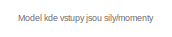
[diagram: root canvas - part 1/2, top left region]
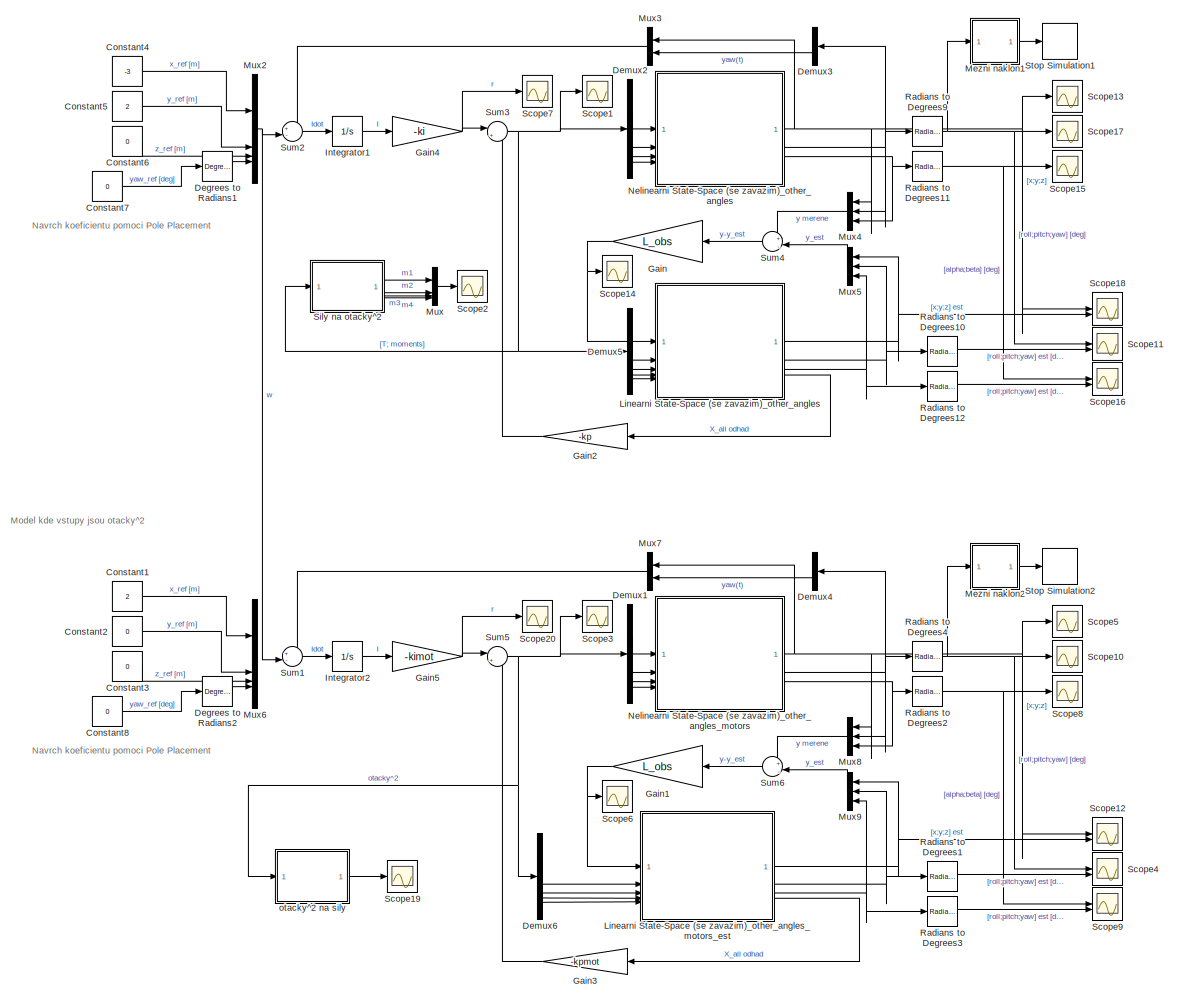
[diagram: root canvas - part 2/2, most of the canvas]
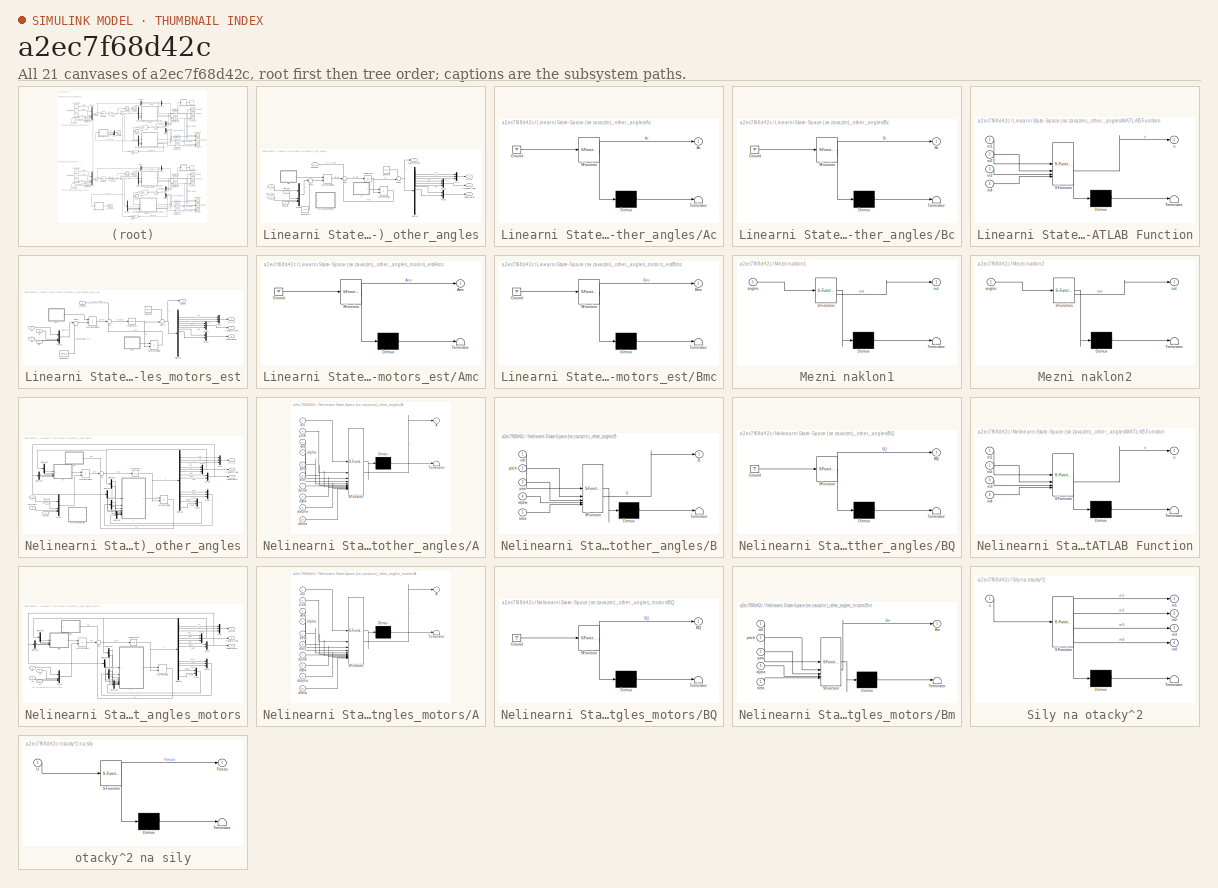
[diagram: thumbnail index - all 21 canvases of the model, root first then tree order]
MODEL slx_a2ec7f68d42c
KIND model
CONFIG AbsTol = auto
CONFIG EnableMultiTasking = off
CONFIG FixedStep = 0.01
CONFIG MaxStep = auto
CONFIG MinStep = auto
CONFIG RelTol = 1e-3
CONFIG SampleTimeConstraint = Unconstrained
CONFIG SolverName = FixedStepAuto
CONFIG StartTime = 0.0
CONFIG StopTime = 20
BLOCK [Constant] Constant1
  Commented = on
  Value = 2
BLOCK [Constant] Constant2
  Commented = on
  Value = 0
BLOCK [Constant] Constant3
  Commented = on
  Value = 0
BLOCK [Constant] Constant4
  Value = -3
BLOCK [Constant] Constant5
  Value = 2
BLOCK [Constant] Constant6
  Value = 0
BLOCK [Constant] Constant7
  Value = 0
BLOCK [Constant] Constant8
  Commented = on
  Value = 0
BLOCK [Reference] Degrees to Radians1  REF=simulink_extras/Transformations/Degrees to
Radians
  SourceBlock = simulink_extras/Transformations/Degrees to\nRadians
  SourceType = DegreesToRadians
BLOCK [Reference] Degrees to Radians2  REF=simulink_extras/Transformations/Degrees to
Radians
  Commented = on
  SourceBlock = simulink_extras/Transformations/Degrees to\nRadians
  SourceType = DegreesToRadians
BLOCK [Demux] Demux1
BLOCK [Demux] Demux2
BLOCK [Demux] Demux3
  Outputs = 3
BLOCK [Demux] Demux4
  Outputs = 3
BLOCK [Demux] Demux5
BLOCK [Demux] Demux6
BLOCK [Gain] Gain
  Gain = L_obs
  Multiplication = Matrix(K*u)
BLOCK [Gain] Gain1
  Gain = L_obs
  Multiplication = Matrix(K*u)
BLOCK [Gain] Gain2
  Gain = -kp
  Multiplication = Matrix(K*u)
BLOCK [Gain] Gain3
  Gain = -kpmot
  Multiplication = Matrix(K*u)
BLOCK [Gain] Gain4
  Gain = -ki
  Multiplication = Matrix(K*u)
BLOCK [Gain] Gain5
  Gain = -kimot
  Multiplication = Matrix(K*u)
BLOCK [Integrator] Integrator1
BLOCK [Integrator] Integrator2
BLOCK [SubSystem] Linearni State-Space (se zavazim)_other_angles
BLOCK [SubSystem] Linearni State-Space (se zavazim)_other_angles/Ac
  ErrorFcn = Stateflow.Translate.translate
  PermitHierarchicalResolution = ExplicitOnly
  SFBlockType = MATLAB Function
  TreatAsAtomicUnit = on
BLOCK [Demux] Linearni State-Space (se zavazim)_other_angles/Ac/ Demux 
  Outputs = 1
BLOCK [Ground] Linearni State-Space (se zavazim)_other_angles/Ac/ Ground 
BLOCK [S-Function] Linearni State-Space (se zavazim)_other_angles/Ac/ SFunction 
  EnableBusSupport = on
  FunctionName = sf_sfun
  Parameters = Ip,M,d,g,m
  PortCounts = [1 2]
  SFcnIsStateOwnerBlock = off
  SFunctionDeploymentMode = off
  Tag = Stateflow S-Function 4
BLOCK [Terminator] Linearni State-Space (se zavazim)_other_angles/Ac/ Terminator 
BLOCK [Outport] Linearni State-Space (se zavazim)_other_angles/Ac/Ac
BLOCK [SubSystem] Linearni State-Space (se zavazim)_other_angles/Bc
  ErrorFcn = Stateflow.Translate.translate
  PermitHierarchicalResolution = ExplicitOnly
  SFBlockType = MATLAB Function
  TreatAsAtomicUnit = on
BLOCK [Demux] Linearni State-Space (se zavazim)_other_angles/Bc/ Demux 
  Outputs = 1
BLOCK [Ground] Linearni State-Space (se zavazim)_other_angles/Bc/ Ground 
BLOCK [S-Function] Linearni State-Space (se zavazim)_other_angles/Bc/ SFunction 
  EnableBusSupport = on
  FunctionName = sf_sfun
  Parameters = Ixx,Iyy,Izz,M,m
  PortCounts = [1 2]
  SFcnIsStateOwnerBlock = off
  SFunctionDeploymentMode = off
  Tag = Stateflow S-Function 5
BLOCK [Terminator] Linearni State-Space (se zavazim)_other_angles/Bc/ Terminator 
BLOCK [Outport] Linearni State-Space (se zavazim)_other_angles/Bc/Bc
BLOCK [Constant] Linearni State-Space (se zavazim)_other_angles/Constant
  Value = Xs_p
BLOCK [Constant] Linearni State-Space (se zavazim)_other_angles/Constant1
  Value = Us_p
BLOCK [Demux] Linearni State-Space (se zavazim)_other_angles/Demux
  Outputs = 16
BLOCK [Integrator] Linearni State-Space (se zavazim)_other_angles/Integrator1
  InitialCondition = Xinit_ss
BLOCK [Inport] Linearni State-Space (se zavazim)_other_angles/Korekce
BLOCK [SubSystem] Linearni State-Space (se zavazim)_other_angles/MATLAB Function
  Commented = on
  ErrorFcn = Stateflow.Translate.translate
  PermitHierarchicalResolution = ExplicitOnly
  SFBlockType = MATLAB Function
  TreatAsAtomicUnit = on
BLOCK [Demux] Linearni State-Space (se zavazim)_other_angles/MATLAB Function/ Demux 
  Outputs = 1
BLOCK [S-Function] Linearni State-Space (se zavazim)_other_angles/MATLAB Function/ SFunction 
  EnableBusSupport = on
  FunctionName = sf_sfun
  Parameters = L,b_moment,k_thrust
  PortCounts = [4 2]
  SFcnIsStateOwnerBlock = off
  SFunctionDeploymentMode = off
  Tag = Stateflow S-Function 6
BLOCK [Terminator] Linearni State-Space (se zavazim)_other_angles/MATLAB Function/ Terminator 
BLOCK [Inport] Linearni State-Space (se zavazim)_other_angles/MATLAB Function/m1
BLOCK [Inport] Linearni State-Space (se zavazim)_other_angles/MATLAB Function/m2
  Port = 2
BLOCK [Inport] Linearni State-Space (se zavazim)_other_angles/MATLAB Function/m3
  Port = 3
BLOCK [Inport] Linearni State-Space (se zavazim)_other_angles/MATLAB Function/m4
  Port = 4
BLOCK [Outport] Linearni State-Space (se zavazim)_other_angles/MATLAB Function/u
BLOCK [Product] Linearni State-Space (se zavazim)_other_angles/MatrixMultiply
  Multiplication = Matrix(*)
BLOCK [Product] Linearni State-Space (se zavazim)_other_angles/MatrixMultiply1
  Multiplication = Matrix(*)
BLOCK [Mux] Linearni State-Space (se zavazim)_other_angles/Mux
  DisplayOption = bar
  Inputs = 3
BLOCK [Mux] Linearni State-Space (se zavazim)_other_angles/Mux1
  DisplayOption = bar
  Inputs = 3
BLOCK [Mux] Linearni State-Space (se zavazim)_other_angles/Mux2
  DisplayOption = bar
  Inputs = 2
BLOCK [Mux] Linearni State-Space (se zavazim)_other_angles/Mux5
  DisplayOption = bar
BLOCK [Sum] Linearni State-Space (se zavazim)_other_angles/Sum
  Inputs = +++
BLOCK [Sum] Linearni State-Space (se zavazim)_other_angles/Sum1
  Inputs = ++|
BLOCK [Sum] Linearni State-Space (se zavazim)_other_angles/Sum2
  Inputs = |+-
BLOCK [Inport] Linearni State-Space (se zavazim)_other_angles/T
  Port = 2
BLOCK [Inport] Linearni State-Space (se zavazim)_other_angles/Tau_phi
  Port = 3
BLOCK [Inport] Linearni State-Space (se zavazim)_other_angles/Tau_psi
  Port = 5
BLOCK [Inport] Linearni State-Space (se zavazim)_other_angles/Tau_theta
  Port = 4
BLOCK [Outport] Linearni State-Space (se zavazim)_other_angles/X_all_estimate
  Port = 4
BLOCK [Outport] Linearni State-Space (se zavazim)_other_angles/[alpha;beta]
  Port = 3
BLOCK [Outport] Linearni State-Space (se zavazim)_other_angles/[roll;pitch;yaw]
  Port = 2
BLOCK [Outport] Linearni State-Space (se zavazim)_other_angles/[x;y;z]
BLOCK [SubSystem] Linearni State-Space (se zavazim)_other_angles_motors_est
BLOCK [SubSystem] Linearni State-Space (se zavazim)_other_angles_motors_est/Amc
  ErrorFcn = Stateflow.Translate.translate
  PermitHierarchicalResolution = ExplicitOnly
  SFBlockType = MATLAB Function
  TreatAsAtomicUnit = on
BLOCK [Demux] Linearni State-Space (se zavazim)_other_angles_motors_est/Amc/ Demux 
  Outputs = 1
BLOCK [Ground] Linearni State-Space (se zavazim)_other_angles_motors_est/Amc/ Ground 
BLOCK [S-Function] Linearni State-Space (se zavazim)_other_angles_motors_est/Amc/ SFunction 
  EnableBusSupport = on
  FunctionName = sf_sfun
  Parameters = M,d,g,m
  PortCounts = [1 2]
  SFcnIsStateOwnerBlock = off
  SFunctionDeploymentMode = off
  Tag = Stateflow S-Function 32
BLOCK [Terminator] Linearni State-Space (se zavazim)_other_angles_motors_est/Amc/ Terminator 
BLOCK [Outport] Linearni State-Space (se zavazim)_other_angles_motors_est/Amc/Amc
BLOCK [SubSystem] Linearni State-Space (se zavazim)_other_angles_motors_est/Bmc
  ErrorFcn = Stateflow.Translate.translate
  PermitHierarchicalResolution = ExplicitOnly
  SFBlockType = MATLAB Function
  TreatAsAtomicUnit = on
BLOCK [Demux] Linearni State-Space (se zavazim)_other_angles_motors_est/Bmc/ Demux 
  Outputs = 1
BLOCK [Ground] Linearni State-Space (se zavazim)_other_angles_motors_est/Bmc/ Ground 
BLOCK [S-Function] Linearni State-Space (se zavazim)_other_angles_motors_est/Bmc/ SFunction 
  EnableBusSupport = on
  FunctionName = sf_sfun
  Parameters = Ixx,Iyy,Izz,M,b_moment,k_thrust,l,m
  PortCounts = [1 2]
  SFcnIsStateOwnerBlock = off
  SFunctionDeploymentMode = off
  Tag = Stateflow S-Function 33
BLOCK [Terminator] Linearni State-Space (se zavazim)_other_angles_motors_est/Bmc/ Terminator 
BLOCK [Outport] Linearni State-Space (se zavazim)_other_angles_motors_est/Bmc/Bmc
BLOCK [Constant] Linearni State-Space (se zavazim)_other_angles_motors_est/Constant
  Value = Xs_p
BLOCK [Constant] Linearni State-Space (se zavazim)_other_angles_motors_est/Constant1
  Value = Ums_p
BLOCK [Demux] Linearni State-Space (se zavazim)_other_angles_motors_est/Demux
  Outputs = 16
BLOCK [Integrator] Linearni State-Space (se zavazim)_other_angles_motors_est/Integrator1
  InitialCondition = Xinit_ss
BLOCK [Inport] Linearni State-Space (se zavazim)_other_angles_motors_est/Korekce
BLOCK [Product] Linearni State-Space (se zavazim)_other_angles_motors_est/MatrixMultiply
  Multiplication = Matrix(*)
BLOCK [Product] Linearni State-Space (se zavazim)_other_angles_motors_est/MatrixMultiply1
  Multiplication = Matrix(*)
BLOCK [Mux] Linearni State-Space (se zavazim)_other_angles_motors_est/Mux
  DisplayOption = bar
  Inputs = 3
BLOCK [Mux] Linearni State-Space (se zavazim)_other_angles_motors_est/Mux1
  DisplayOption = bar
  Inputs = 3
BLOCK [Mux] Linearni State-Space (se zavazim)_other_angles_motors_est/Mux2
  DisplayOption = bar
  Inputs = 2
BLOCK [Mux] Linearni State-Space (se zavazim)_other_angles_motors_est/Mux5
  DisplayOption = bar
BLOCK [Sum] Linearni State-Space (se zavazim)_other_angles_motors_est/Sum
  Inputs = +++
BLOCK [Sum] Linearni State-Space (se zavazim)_other_angles_motors_est/Sum1
  Inputs = ++|
BLOCK [Sum] Linearni State-Space (se zavazim)_other_angles_motors_est/Sum2
  Inputs = |+-
BLOCK [Inport] Linearni State-Space (se zavazim)_other_angles_motors_est/U1
  Port = 2
BLOCK [Inport] Linearni State-Space (se zavazim)_other_angles_motors_est/U2
  Port = 3
BLOCK [Inport] Linearni State-Space (se zavazim)_other_angles_motors_est/U3
  Port = 4
BLOCK [Inport] Linearni State-Space (se zavazim)_other_angles_motors_est/U4
  Port = 5
BLOCK [Outport] Linearni State-Space (se zavazim)_other_angles_motors_est/X_all_est
  Port = 4
BLOCK [Outport] Linearni State-Space (se zavazim)_other_angles_motors_est/[alpha;beta]
  Port = 3
BLOCK [Outport] Linearni State-Space (se zavazim)_other_angles_motors_est/[roll;pitch;yaw]
  Port = 2
BLOCK [Outport] Linearni State-Space (se zavazim)_other_angles_motors_est/[x;y;z]
BLOCK [SubSystem] Mezni naklon1
  ErrorFcn = Stateflow.Translate.translate
  PermitHierarchicalResolution = ExplicitOnly
  SFBlockType = MATLAB Function
  TreatAsAtomicUnit = on
BLOCK [Demux] Mezni naklon1/ Demux 
  Outputs = 1
BLOCK [S-Function] Mezni naklon1/ SFunction 
  EnableBusSupport = on
  FunctionName = sf_sfun
  PortCounts = [1 2]
  SFcnIsStateOwnerBlock = off
  SFunctionDeploymentMode = off
  Tag = Stateflow S-Function 2
BLOCK [Terminator] Mezni naklon1/ Terminator 
BLOCK [Inport] Mezni naklon1/angles
BLOCK [Outport] Mezni naklon1/out
BLOCK [SubSystem] Mezni naklon2
  ErrorFcn = Stateflow.Translate.translate
  PermitHierarchicalResolution = ExplicitOnly
  SFBlockType = MATLAB Function
  TreatAsAtomicUnit = on
BLOCK [Demux] Mezni naklon2/ Demux 
  Outputs = 1
BLOCK [S-Function] Mezni naklon2/ SFunction 
  EnableBusSupport = on
  FunctionName = sf_sfun
  PortCounts = [1 2]
  SFcnIsStateOwnerBlock = off
  SFunctionDeploymentMode = off
  Tag = Stateflow S-Function 9
BLOCK [Terminator] Mezni naklon2/ Terminator 
BLOCK [Inport] Mezni naklon2/angles
BLOCK [Outport] Mezni naklon2/out
BLOCK [Mux] Mux
  DisplayOption = bar
BLOCK [Mux] Mux2
  DisplayOption = bar
BLOCK [Mux] Mux3
  DisplayOption = bar
  Inputs = 2
BLOCK [Mux] Mux4
  DisplayOption = bar
  Inputs = 3
BLOCK [Mux] Mux5
  DisplayOption = bar
  Inputs = 3
BLOCK [Mux] Mux6
  Commented = on
  DisplayOption = bar
BLOCK [Mux] Mux7
  DisplayOption = bar
  Inputs = 2
BLOCK [Mux] Mux8
  DisplayOption = bar
  Inputs = 3
BLOCK [Mux] Mux9
  DisplayOption = bar
  Inputs = 3
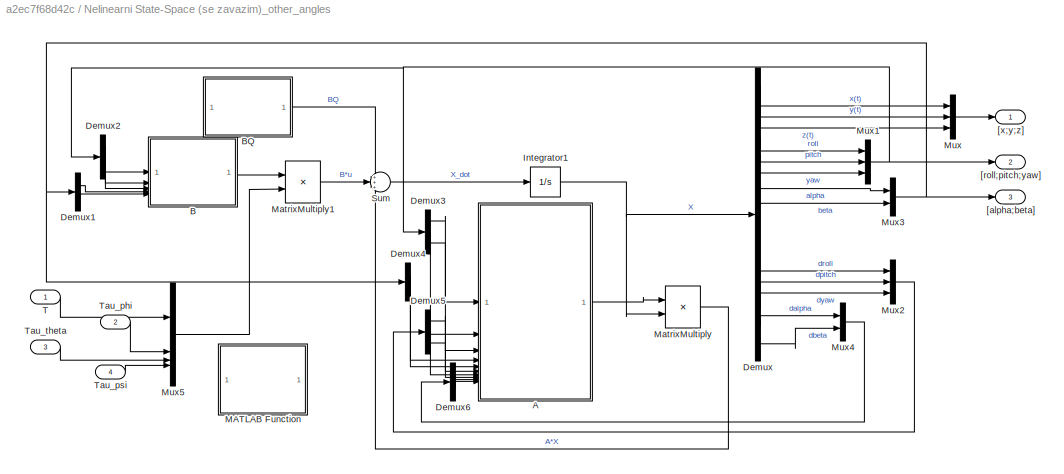
BLOCK [SubSystem] Nelinearni State-Space (se zavazim)_other_angles
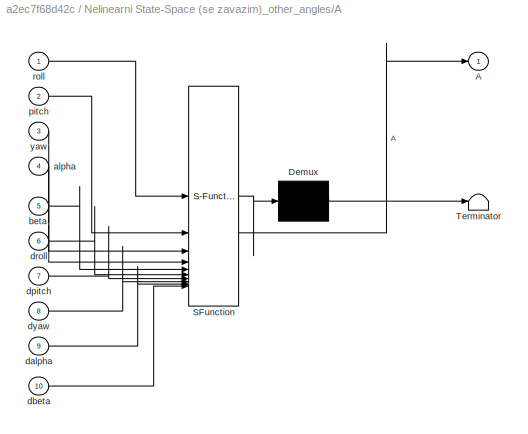
BLOCK [SubSystem] Nelinearni State-Space (se zavazim)_other_angles/A
  ErrorFcn = Stateflow.Translate.translate
  PermitHierarchicalResolution = ExplicitOnly
  SFBlockType = MATLAB Function
  TreatAsAtomicUnit = on
BLOCK [Demux] Nelinearni State-Space (se zavazim)_other_angles/A/ Demux 
  Outputs = 1
BLOCK [S-Function] Nelinearni State-Space (se zavazim)_other_angles/A/ SFunction 
  EnableBusSupport = on
  FunctionName = sf_sfun
  Parameters = Ip,Ixx,Iyy,Izz,M,d,m
  PortCounts = [10 2]
  SFcnIsStateOwnerBlock = off
  SFunctionDeploymentMode = off
  Tag = Stateflow S-Function 21
BLOCK [Terminator] Nelinearni State-Space (se zavazim)_other_angles/A/ Terminator 
BLOCK [Outport] Nelinearni State-Space (se zavazim)_other_angles/A/A
BLOCK [Inport] Nelinearni State-Space (se zavazim)_other_angles/A/alpha
  Port = 4
BLOCK [Inport] Nelinearni State-Space (se zavazim)_other_angles/A/beta
  Port = 5
BLOCK [Inport] Nelinearni State-Space (se zavazim)_other_angles/A/dalpha
  Port = 9
BLOCK [Inport] Nelinearni State-Space (se zavazim)_other_angles/A/dbeta
  Port = 10
BLOCK [Inport] Nelinearni State-Space (se zavazim)_other_angles/A/dpitch
  Port = 7
BLOCK [Inport] Nelinearni State-Space (se zavazim)_other_angles/A/droll
  Port = 6
BLOCK [Inport] Nelinearni State-Space (se zavazim)_other_angles/A/dyaw
  Port = 8
BLOCK [Inport] Nelinearni State-Space (se zavazim)_other_angles/A/pitch
  Port = 2
BLOCK [Inport] Nelinearni State-Space (se zavazim)_other_angles/A/roll
BLOCK [Inport] Nelinearni State-Space (se zavazim)_other_angles/A/yaw
  Port = 3
BLOCK [SubSystem] Nelinearni State-Space (se zavazim)_other_angles/B
  ErrorFcn = Stateflow.Translate.translate
  PermitHierarchicalResolution = ExplicitOnly
  SFBlockType = MATLAB Function
  TreatAsAtomicUnit = on
BLOCK [Demux] Nelinearni State-Space (se zavazim)_other_angles/B/ Demux 
  Outputs = 1
BLOCK [S-Function] Nelinearni State-Space (se zavazim)_other_angles/B/ SFunction 
  EnableBusSupport = on
  FunctionName = sf_sfun
  Parameters = Ip,Ixx,Iyy,Izz,M,d,m
  PortCounts = [5 2]
  SFcnIsStateOwnerBlock = off
  SFunctionDeploymentMode = off
  Tag = Stateflow S-Function 22
BLOCK [Terminator] Nelinearni State-Space (se zavazim)_other_angles/B/ Terminator 
BLOCK [Outport] Nelinearni State-Space (se zavazim)_other_angles/B/B
BLOCK [Inport] Nelinearni State-Space (se zavazim)_other_angles/B/alpha
  Port = 4
BLOCK [Inport] Nelinearni State-Space (se zavazim)_other_angles/B/beta
  Port = 5
BLOCK [Inport] Nelinearni State-Space (se zavazim)_other_angles/B/pitch
  Port = 2
BLOCK [Inport] Nelinearni State-Space (se zavazim)_other_angles/B/roll
BLOCK [Inport] Nelinearni State-Space (se zavazim)_other_angles/B/yaw
  Port = 3
BLOCK [SubSystem] Nelinearni State-Space (se zavazim)_other_angles/BQ
  ErrorFcn = Stateflow.Translate.translate
  PermitHierarchicalResolution = ExplicitOnly
  SFBlockType = MATLAB Function
  TreatAsAtomicUnit = on
BLOCK [Demux] Nelinearni State-Space (se zavazim)_other_angles/BQ/ Demux 
  Outputs = 1
BLOCK [Ground] Nelinearni State-Space (se zavazim)_other_angles/BQ/ Ground 
BLOCK [S-Function] Nelinearni State-Space (se zavazim)_other_angles/BQ/ SFunction 
  EnableBusSupport = on
  FunctionName = sf_sfun
  Parameters = g
  PortCounts = [1 2]
  SFcnIsStateOwnerBlock = off
  SFunctionDeploymentMode = off
  Tag = Stateflow S-Function 23
BLOCK [Terminator] Nelinearni State-Space (se zavazim)_other_angles/BQ/ Terminator 
BLOCK [Outport] Nelinearni State-Space (se zavazim)_other_angles/BQ/BQ
BLOCK [Demux] Nelinearni State-Space (se zavazim)_other_angles/Demux
  Outputs = 16
BLOCK [Demux] Nelinearni State-Space (se zavazim)_other_angles/Demux1
  Outputs = 2
BLOCK [Demux] Nelinearni State-Space (se zavazim)_other_angles/Demux2
  Outputs = 3
BLOCK [Demux] Nelinearni State-Space (se zavazim)_other_angles/Demux3
  Outputs = 3
BLOCK [Demux] Nelinearni State-Space (se zavazim)_other_angles/Demux4
  Outputs = 2
BLOCK [Demux] Nelinearni State-Space (se zavazim)_other_angles/Demux5
  Outputs = 3
BLOCK [Demux] Nelinearni State-Space (se zavazim)_other_angles/Demux6
  Outputs = 2
BLOCK [Integrator] Nelinearni State-Space (se zavazim)_other_angles/Integrator1
  InitialCondition = Xinit_ss
BLOCK [SubSystem] Nelinearni State-Space (se zavazim)_other_angles/MATLAB Function
  Commented = on
  ErrorFcn = Stateflow.Translate.translate
  PermitHierarchicalResolution = ExplicitOnly
  SFBlockType = MATLAB Function
  TreatAsAtomicUnit = on
BLOCK [Demux] Nelinearni State-Space (se zavazim)_other_angles/MATLAB Function/ Demux 
  Outputs = 1
BLOCK [S-Function] Nelinearni State-Space (se zavazim)_other_angles/MATLAB Function/ SFunction 
  EnableBusSupport = on
  FunctionName = sf_sfun
  Parameters = L,b_moment,k_thrust
  PortCounts = [4 2]
  SFcnIsStateOwnerBlock = off
  SFunctionDeploymentMode = off
  Tag = Stateflow S-Function 24
BLOCK [Terminator] Nelinearni State-Space (se zavazim)_other_angles/MATLAB Function/ Terminator 
BLOCK [Inport] Nelinearni State-Space (se zavazim)_other_angles/MATLAB Function/m1
BLOCK [Inport] Nelinearni State-Space (se zavazim)_other_angles/MATLAB Function/m2
  Port = 2
BLOCK [Inport] Nelinearni State-Space (se zavazim)_other_angles/MATLAB Function/m3
  Port = 3
BLOCK [Inport] Nelinearni State-Space (se zavazim)_other_angles/MATLAB Function/m4
  Port = 4
BLOCK [Outport] Nelinearni State-Space (se zavazim)_other_angles/MATLAB Function/u
BLOCK [Product] Nelinearni State-Space (se zavazim)_other_angles/MatrixMultiply
  Multiplication = Matrix(*)
BLOCK [Product] Nelinearni State-Space (se zavazim)_other_angles/MatrixMultiply1
  Multiplication = Matrix(*)
BLOCK [Mux] Nelinearni State-Space (se zavazim)_other_angles/Mux
  DisplayOption = bar
  Inputs = 3
BLOCK [Mux] Nelinearni State-Space (se zavazim)_other_angles/Mux1
  DisplayOption = bar
  Inputs = 3
BLOCK [Mux] Nelinearni State-Space (se zavazim)_other_angles/Mux2
  DisplayOption = bar
  Inputs = 3
BLOCK [Mux] Nelinearni State-Space (se zavazim)_other_angles/Mux3
  DisplayOption = bar
  Inputs = 2
BLOCK [Mux] Nelinearni State-Space (se zavazim)_other_angles/Mux4
  DisplayOption = bar
  Inputs = 2
BLOCK [Mux] Nelinearni State-Space (se zavazim)_other_angles/Mux5
  DisplayOption = bar
BLOCK [Sum] Nelinearni State-Space (se zavazim)_other_angles/Sum
  Inputs = +++
BLOCK [Inport] Nelinearni State-Space (se zavazim)_other_angles/T
BLOCK [Inport] Nelinearni State-Space (se zavazim)_other_angles/Tau_phi
  Port = 2
BLOCK [Inport] Nelinearni State-Space (se zavazim)_other_angles/Tau_psi
  Port = 4
BLOCK [Inport] Nelinearni State-Space (se zavazim)_other_angles/Tau_theta
  Port = 3
BLOCK [Outport] Nelinearni State-Space (se zavazim)_other_angles/[alpha;beta]
  Port = 3
BLOCK [Outport] Nelinearni State-Space (se zavazim)_other_angles/[roll;pitch;yaw]
  Port = 2
BLOCK [Outport] Nelinearni State-Space (se zavazim)_other_angles/[x;y;z]
BLOCK [SubSystem] Nelinearni State-Space (se zavazim)_other_angles_motors
BLOCK [SubSystem] Nelinearni State-Space (se zavazim)_other_angles_motors/A
  ErrorFcn = Stateflow.Translate.translate
  PermitHierarchicalResolution = ExplicitOnly
  SFBlockType = MATLAB Function
  TreatAsAtomicUnit = on
BLOCK [Demux] Nelinearni State-Space (se zavazim)_other_angles_motors/A/ Demux 
  Outputs = 1
BLOCK [S-Function] Nelinearni State-Space (se zavazim)_other_angles_motors/A/ SFunction 
  EnableBusSupport = on
  FunctionName = sf_sfun
  Parameters = Ip,Ixx,Iyy,Izz,M,d,m
  PortCounts = [10 2]
  SFcnIsStateOwnerBlock = off
  SFunctionDeploymentMode = off
  Tag = Stateflow S-Function 15
BLOCK [Terminator] Nelinearni State-Space (se zavazim)_other_angles_motors/A/ Terminator 
BLOCK [Outport] Nelinearni State-Space (se zavazim)_other_angles_motors/A/A
BLOCK [Inport] Nelinearni State-Space (se zavazim)_other_angles_motors/A/alpha
  Port = 4
BLOCK [Inport] Nelinearni State-Space (se zavazim)_other_angles_motors/A/beta
  Port = 5
BLOCK [Inport] Nelinearni State-Space (se zavazim)_other_angles_motors/A/dalpha
  Port = 9
BLOCK [Inport] Nelinearni State-Space (se zavazim)_other_angles_motors/A/dbeta
  Port = 10
BLOCK [Inport] Nelinearni State-Space (se zavazim)_other_angles_motors/A/dpitch
  Port = 7
BLOCK [Inport] Nelinearni State-Space (se zavazim)_other_angles_motors/A/droll
  Port = 6
BLOCK [Inport] Nelinearni State-Space (se zavazim)_other_angles_motors/A/dyaw
  Port = 8
BLOCK [Inport] Nelinearni State-Space (se zavazim)_other_angles_motors/A/pitch
  Port = 2
BLOCK [Inport] Nelinearni State-Space (se zavazim)_other_angles_motors/A/roll
BLOCK [Inport] Nelinearni State-Space (se zavazim)_other_angles_motors/A/yaw
  Port = 3
BLOCK [SubSystem] Nelinearni State-Space (se zavazim)_other_angles_motors/BQ
  ErrorFcn = Stateflow.Translate.translate
  PermitHierarchicalResolution = ExplicitOnly
  SFBlockType = MATLAB Function
  TreatAsAtomicUnit = on
BLOCK [Demux] Nelinearni State-Space (se zavazim)_other_angles_motors/BQ/ Demux 
  Outputs = 1
BLOCK [Ground] Nelinearni State-Space (se zavazim)_other_angles_motors/BQ/ Ground 
BLOCK [S-Function] Nelinearni State-Space (se zavazim)_other_angles_motors/BQ/ SFunction 
  EnableBusSupport = on
  FunctionName = sf_sfun
  Parameters = g
  PortCounts = [1 2]
  SFcnIsStateOwnerBlock = off
  SFunctionDeploymentMode = off
  Tag = Stateflow S-Function 16
BLOCK [Terminator] Nelinearni State-Space (se zavazim)_other_angles_motors/BQ/ Terminator 
BLOCK [Outport] Nelinearni State-Space (se zavazim)_other_angles_motors/BQ/BQ
BLOCK [SubSystem] Nelinearni State-Space (se zavazim)_other_angles_motors/Bm
  ErrorFcn = Stateflow.Translate.translate
  PermitHierarchicalResolution = ExplicitOnly
  SFBlockType = MATLAB Function
  TreatAsAtomicUnit = on
BLOCK [Demux] Nelinearni State-Space (se zavazim)_other_angles_motors/Bm/ Demux 
  Outputs = 1
BLOCK [S-Function] Nelinearni State-Space (se zavazim)_other_angles_motors/Bm/ SFunction 
  EnableBusSupport = on
  FunctionName = sf_sfun
  Parameters = Ixx,Iyy,Izz,M,b_moment,d,k_thrust,l,m
  PortCounts = [5 2]
  SFcnIsStateOwnerBlock = off
  SFunctionDeploymentMode = off
  Tag = Stateflow S-Function 17
BLOCK [Terminator] Nelinearni State-Space (se zavazim)_other_angles_motors/Bm/ Terminator 
BLOCK [Outport] Nelinearni State-Space (se zavazim)_other_angles_motors/Bm/Bm
BLOCK [Inport] Nelinearni State-Space (se zavazim)_other_angles_motors/Bm/alpha
  Port = 4
BLOCK [Inport] Nelinearni State-Space (se zavazim)_other_angles_motors/Bm/beta
  Port = 5
BLOCK [Inport] Nelinearni State-Space (se zavazim)_other_angles_motors/Bm/pitch
  Port = 2
BLOCK [Inport] Nelinearni State-Space (se zavazim)_other_angles_motors/Bm/roll
BLOCK [Inport] Nelinearni State-Space (se zavazim)_other_angles_motors/Bm/yaw
  Port = 3
BLOCK [Demux] Nelinearni State-Space (se zavazim)_other_angles_motors/Demux
  Outputs = 16
BLOCK [Demux] Nelinearni State-Space (se zavazim)_other_angles_motors/Demux1
  Outputs = 2
BLOCK [Demux] Nelinearni State-Space (se zavazim)_other_angles_motors/Demux2
  Outputs = 3
BLOCK [Demux] Nelinearni State-Space (se zavazim)_other_angles_motors/Demux3
  Outputs = 3
BLOCK [Demux] Nelinearni State-Space (se zavazim)_other_angles_motors/Demux4
  Outputs = 2
BLOCK [Demux] Nelinearni State-Space (se zavazim)_other_angles_motors/Demux5
  Outputs = 3
BLOCK [Demux] Nelinearni State-Space (se zavazim)_other_angles_motors/Demux6
  Outputs = 2
BLOCK [Integrator] Nelinearni State-Space (se zavazim)_other_angles_motors/Integrator1
  InitialCondition = Xinit_ss
BLOCK [Product] Nelinearni State-Space (se zavazim)_other_angles_motors/MatrixMultiply
  Multiplication = Matrix(*)
BLOCK [Product] Nelinearni State-Space (se zavazim)_other_angles_motors/MatrixMultiply1
  Multiplication = Matrix(*)
BLOCK [Mux] Nelinearni State-Space (se zavazim)_other_angles_motors/Mux
  DisplayOption = bar
  Inputs = 3
BLOCK [Mux] Nelinearni State-Space (se zavazim)_other_angles_motors/Mux1
  DisplayOption = bar
  Inputs = 3
BLOCK [Mux] Nelinearni State-Space (se zavazim)_other_angles_motors/Mux2
  DisplayOption = bar
  Inputs = 3
BLOCK [Mux] Nelinearni State-Space (se zavazim)_other_angles_motors/Mux3
  DisplayOption = bar
  Inputs = 2
BLOCK [Mux] Nelinearni State-Space (se zavazim)_other_angles_motors/Mux4
  DisplayOption = bar
  Inputs = 2
BLOCK [Mux] Nelinearni State-Space (se zavazim)_other_angles_motors/Mux5
  DisplayOption = bar
BLOCK [Sum] Nelinearni State-Space (se zavazim)_other_angles_motors/Sum
  Inputs = +++
BLOCK [Inport] Nelinearni State-Space (se zavazim)_other_angles_motors/U1
BLOCK [Inport] Nelinearni State-Space (se zavazim)_other_angles_motors/U2
  Port = 2
BLOCK [Inport] Nelinearni State-Space (se zavazim)_other_angles_motors/U3
  Port = 3
BLOCK [Inport] Nelinearni State-Space (se zavazim)_other_angles_motors/U4
  Port = 4
BLOCK [Outport] Nelinearni State-Space (se zavazim)_other_angles_motors/[alpha;beta]
  Port = 3
BLOCK [Outport] Nelinearni State-Space (se zavazim)_other_angles_motors/[roll;pitch;yaw]
  Port = 2
BLOCK [Outport] Nelinearni State-Space (se zavazim)_other_angles_motors/[x;y;z]
BLOCK [Reference] Radians to Degrees1  REF=simulink_extras/Transformations/Radians
to Degrees
  SourceBlock = simulink_extras/Transformations/Radians\nto Degrees
  SourceType = RadiansToDegrees
BLOCK [Reference] Radians to Degrees10  REF=simulink_extras/Transformations/Radians
to Degrees
  SourceBlock = simulink_extras/Transformations/Radians\nto Degrees
  SourceType = RadiansToDegrees
BLOCK [Reference] Radians to Degrees11  REF=simulink_extras/Transformations/Radians
to Degrees
  SourceBlock = simulink_extras/Transformations/Radians\nto Degrees
  SourceType = RadiansToDegrees
BLOCK [Reference] Radians to Degrees12  REF=simulink_extras/Transformations/Radians
to Degrees
  SourceBlock = simulink_extras/Transformations/Radians\nto Degrees
  SourceType = RadiansToDegrees
BLOCK [Reference] Radians to Degrees2  REF=simulink_extras/Transformations/Radians
to Degrees
  SourceBlock = simulink_extras/Transformations/Radians\nto Degrees
  SourceType = RadiansToDegrees
BLOCK [Reference] Radians to Degrees3  REF=simulink_extras/Transformations/Radians
to Degrees
  SourceBlock = simulink_extras/Transformations/Radians\nto Degrees
  SourceType = RadiansToDegrees
BLOCK [Reference] Radians to Degrees4  REF=simulink_extras/Transformations/Radians
to Degrees
  SourceBlock = simulink_extras/Transformations/Radians\nto Degrees
  SourceType = RadiansToDegrees
BLOCK [Reference] Radians to Degrees9  REF=simulink_extras/Transformations/Radians
to Degrees
  SourceBlock = simulink_extras/Transformations/Radians\nto Degrees
  SourceType = RadiansToDegrees
BLOCK [Scope] Scope1
  Floating = off
  NumInputPorts = 1
  ScopeSpecificationString = Simulink.scopes.TimeScopeBlockCfg('CurrentConfiguration', extmgr.ConfigurationSet(extmgr.Configuration('Core','General UI',true),extmgr.Configuration('Core','Source UI',true),extmgr.Configuration('Sources','WiredSimulink',true,'DataLoggingVariableName','ScopeData2'),extmgr.Configuration('Visuals','Time Domain',true,'SerializedDisplays',{struct('MinYLimReal','-4.38118','MaxYLimReal','39.37006','YLa...<+1590ch>
BLOCK [Scope] Scope10
  Floating = off
  NumInputPorts = 1
  ScopeSpecificationString = Simulink.scopes.TimeScopeBlockCfg('CurrentConfiguration', extmgr.ConfigurationSet(extmgr.Configuration('Core','General UI',true,'FigureColor',[1 1 1]),extmgr.Configuration('Core','Source UI',true),extmgr.Configuration('Sources','WiredSimulink',true,'DataLoggingVariableName','ScopeData1'),extmgr.Configuration('Visuals','Time Domain',true,'SerializedDisplays',{struct('MinYLimReal','-3.10773','MaxYLi...<+1928ch>
BLOCK [Scope] Scope11
  Floating = off
  NumInputPorts = 2
  ScopeSpecificationString = Simulink.scopes.TimeScopeBlockCfg('CurrentConfiguration', extmgr.ConfigurationSet(extmgr.Configuration('Core','General UI',true),extmgr.Configuration('Core','Source UI',true),extmgr.Configuration('Sources','WiredSimulink',true,'DataLoggingVariableName','ScopeData3'),extmgr.Configuration('Visuals','Time Domain',true,'SerializedDisplays',{struct('MinYLimReal','-14.50798','MaxYLimReal','48.4746','YLa...<+1677ch>
BLOCK [Scope] Scope12
  Floating = off
  NumInputPorts = 2
  ScopeSpecificationString = Simulink.scopes.TimeScopeBlockCfg('CurrentConfiguration', extmgr.ConfigurationSet(extmgr.Configuration('Core','General UI',true),extmgr.Configuration('Core','Source UI',true),extmgr.Configuration('Sources','WiredSimulink',true,'DataLoggingVariableName','ScopeData4'),extmgr.Configuration('Visuals','Time Domain',true,'SerializedDisplays',{struct('MinYLimReal','-0.72307','MaxYLimReal','2.37606','YLab...<+1737ch>
BLOCK [Scope] Scope13
  Floating = off
  NumInputPorts = 1
  ScopeSpecificationString = Simulink.scopes.TimeScopeBlockCfg('CurrentConfiguration', extmgr.ConfigurationSet(extmgr.Configuration('Core','General UI',true,'FigureColor',[1 1 1]),extmgr.Configuration('Core','Source UI',true),extmgr.Configuration('Sources','WiredSimulink',true,'DataLoggingVariableName','ScopeData5'),extmgr.Configuration('Visuals','Time Domain',true,'SerializedDisplays',{struct('MinYLimReal','-4.28625','MaxYLi...<+1860ch>
BLOCK [Scope] Scope14
  Floating = off
  NumInputPorts = 1
  ScopeSpecificationString = Simulink.scopes.TimeScopeBlockCfg('CurrentConfiguration', extmgr.ConfigurationSet(extmgr.Configuration('Core','General UI',true),extmgr.Configuration('Core','Source UI',true),extmgr.Configuration('Sources','WiredSimulink',true,'DataLoggingVariableName','ScopeData1'),extmgr.Configuration('Visuals','Time Domain',true,'SerializedDisplays',{struct('MinYLimReal','-0.92224','MaxYLimReal','0.99248','YLab...<+1622ch>
BLOCK [Scope] Scope15
  Floating = off
  NumInputPorts = 1
  ScopeSpecificationString = Simulink.scopes.TimeScopeBlockCfg('CurrentConfiguration', extmgr.ConfigurationSet(extmgr.Configuration('Core','General UI',true,'FigureColor',[1 1 1]),extmgr.Configuration('Core','Source UI',true),extmgr.Configuration('Sources','WiredSimulink',true,'DataLoggingVariableName','ScopeData2'),extmgr.Configuration('Visuals','Time Domain',true,'SerializedDisplays',{struct('MinYLimReal','-12.84783','MaxYL...<+1876ch>
BLOCK [Scope] Scope16
  Floating = off
  NumInputPorts = 2
  ScopeSpecificationString = Simulink.scopes.TimeScopeBlockCfg('CurrentConfiguration', extmgr.ConfigurationSet(extmgr.Configuration('Core','General UI',true),extmgr.Configuration('Core','Source UI',true),extmgr.Configuration('Sources','WiredSimulink',true,'DataLoggingVariableName','ScopeData8'),extmgr.Configuration('Visuals','Time Domain',true,'SerializedDisplays',{struct('MinYLimReal','-1.64918','MaxYLimReal','1.86766','YLab...<+1555ch>
BLOCK [Scope] Scope17
  Floating = off
  NumInputPorts = 1
  ScopeSpecificationString = Simulink.scopes.TimeScopeBlockCfg('CurrentConfiguration', extmgr.ConfigurationSet(extmgr.Configuration('Core','General UI',true,'FigureColor',[1 1 1]),extmgr.Configuration('Core','Source UI',true),extmgr.Configuration('Sources','WiredSimulink',true,'DataLoggingVariableName','ScopeData1'),extmgr.Configuration('Visuals','Time Domain',true,'SerializedDisplays',{struct('MinYLimReal','-3.64333','MaxYLi...<+1928ch>
BLOCK [Scope] Scope18
  Floating = off
  NumInputPorts = 2
  ScopeSpecificationString = Simulink.scopes.TimeScopeBlockCfg('CurrentConfiguration', extmgr.ConfigurationSet(extmgr.Configuration('Core','General UI',true),extmgr.Configuration('Core','Source UI',true),extmgr.Configuration('Sources','WiredSimulink',true,'DataLoggingVariableName','ScopeData10'),extmgr.Configuration('Visuals','Time Domain',true,'SerializedDisplays',{struct('MinYLimReal','-0.87128','MaxYLimReal','2.50977','YLa...<+1738ch>
BLOCK [Scope] Scope19
  Floating = off
  NumInputPorts = 1
  ScopeSpecificationString = Simulink.scopes.TimeScopeBlockCfg('CurrentConfiguration', extmgr.ConfigurationSet(extmgr.Configuration('Core','General UI',true),extmgr.Configuration('Core','Source UI',true),extmgr.Configuration('Sources','WiredSimulink',true,'DataLoggingVariableName','ScopeData5'),extmgr.Configuration('Visuals','Time Domain',true,'SerializedDisplays',{struct('MinYLimReal','-4.36109','MaxYLimReal','39.20761','YLa...<+1695ch>
BLOCK [Scope] Scope2
  Floating = off
  NumInputPorts = 1
  ScopeSpecificationString = Simulink.scopes.TimeScopeBlockCfg('CurrentConfiguration', extmgr.ConfigurationSet(extmgr.Configuration('Core','General UI',true),extmgr.Configuration('Core','Source UI',true),extmgr.Configuration('Sources','WiredSimulink',true,'DataLoggingVariableName','ScopeData3'),extmgr.Configuration('Visuals','Time Domain',true,'SerializedDisplays',{struct('MinYLimReal','-521.59894','MaxYLimReal','4694.39047',...<+1645ch>
BLOCK [Scope] Scope20
  Floating = off
  NumInputPorts = 1
  ScopeSpecificationString = Simulink.scopes.TimeScopeBlockCfg('CurrentConfiguration', extmgr.ConfigurationSet(extmgr.Configuration('Core','General UI',true),extmgr.Configuration('Core','Source UI',true),extmgr.Configuration('Sources','WiredSimulink',true,'DataLoggingVariableName','ScopeData6'),extmgr.Configuration('Visuals','Time Domain',true,'SerializedDisplays',{struct('MinYLimReal','-5.62056','MaxYLimReal','50.58507','YLa...<+1544ch>
BLOCK [Scope] Scope3
  Floating = off
  NumInputPorts = 1
  ScopeSpecificationString = Simulink.scopes.TimeScopeBlockCfg('CurrentConfiguration', extmgr.ConfigurationSet(extmgr.Configuration('Core','General UI',true),extmgr.Configuration('Core','Source UI',true),extmgr.Configuration('Sources','WiredSimulink',true,'DataLoggingVariableName','ScopeData7'),extmgr.Configuration('Visuals','Time Domain',true,'SerializedDisplays',{struct('MinYLimReal','-523.72553','MaxYLimReal','4713.52973',...<+1677ch>
BLOCK [Scope] Scope4
  Floating = off
  NumInputPorts = 2
  ScopeSpecificationString = Simulink.scopes.TimeScopeBlockCfg('CurrentConfiguration', extmgr.ConfigurationSet(extmgr.Configuration('Core','General UI',true),extmgr.Configuration('Core','Source UI',true),extmgr.Configuration('Sources','WiredSimulink',true,'DataLoggingVariableName','ScopeData8'),extmgr.Configuration('Visuals','Time Domain',true,'SerializedDisplays',{struct('MinYLimReal','-17.38252','MaxYLimReal','4.664','YLabe...<+1675ch>
BLOCK [Scope] Scope5
  Floating = off
  NumInputPorts = 1
  ScopeSpecificationString = Simulink.scopes.TimeScopeBlockCfg('CurrentConfiguration', extmgr.ConfigurationSet(extmgr.Configuration('Core','General UI',true,'FigureColor',[1 1 1]),extmgr.Configuration('Core','Source UI',true),extmgr.Configuration('Sources','WiredSimulink',true,'DataLoggingVariableName','ScopeData9'),extmgr.Configuration('Visuals','Time Domain',true,'SerializedDisplays',{struct('MinYLimReal','-4.11817','MaxYLi...<+1860ch>
BLOCK [Scope] Scope6
  Floating = off
  NumInputPorts = 1
  ScopeSpecificationString = Simulink.scopes.TimeScopeBlockCfg('CurrentConfiguration', extmgr.ConfigurationSet(extmgr.Configuration('Core','General UI',true),extmgr.Configuration('Core','Source UI',true),extmgr.Configuration('Sources','WiredSimulink',true,'DataLoggingVariableName','ScopeData10'),extmgr.Configuration('Visuals','Time Domain',true,'SerializedDisplays',{struct('MinYLimReal','-0.22417','MaxYLimReal','0.24752','YLa...<+1639ch>
BLOCK [Scope] Scope7
  Floating = off
  NumInputPorts = 1
  ScopeSpecificationString = Simulink.scopes.TimeScopeBlockCfg('CurrentConfiguration', extmgr.ConfigurationSet(extmgr.Configuration('Core','General UI',true),extmgr.Configuration('Core','Source UI',true),extmgr.Configuration('Sources','WiredSimulink',true,'DataLoggingVariableName','ScopeData13'),extmgr.Configuration('Visuals','Time Domain',true,'SerializedDisplays',{struct('MinYLimReal','-5.62056','MaxYLimReal','50.58507','YL...<+1545ch>
BLOCK [Scope] Scope8
  Floating = off
  NumInputPorts = 1
  ScopeSpecificationString = Simulink.scopes.TimeScopeBlockCfg('CurrentConfiguration', extmgr.ConfigurationSet(extmgr.Configuration('Core','General UI',true,'FigureColor',[1 1 1]),extmgr.Configuration('Core','Source UI',true),extmgr.Configuration('Sources','WiredSimulink',true,'DataLoggingVariableName','ScopeData11'),extmgr.Configuration('Visuals','Time Domain',true,'SerializedDisplays',{struct('MinYLimReal','-4.85285','MaxYL...<+1871ch>
BLOCK [Scope] Scope9
  Floating = off
  NumInputPorts = 2
  ScopeSpecificationString = Simulink.scopes.TimeScopeBlockCfg('CurrentConfiguration', extmgr.ConfigurationSet(extmgr.Configuration('Core','General UI',true),extmgr.Configuration('Core','Source UI',true),extmgr.Configuration('Sources','WiredSimulink',true,'DataLoggingVariableName','ScopeData12'),extmgr.Configuration('Visuals','Time Domain',true,'SerializedDisplays',{struct('MinYLimReal','-1.64918','MaxYLimReal','1.86766','YLa...<+1556ch>
BLOCK [SubSystem] Sily na otacky^2
  ErrorFcn = Stateflow.Translate.translate
  PermitHierarchicalResolution = ExplicitOnly
  SFBlockType = MATLAB Function
  TreatAsAtomicUnit = on
BLOCK [Demux] Sily na otacky^2/ Demux 
  Outputs = 1
BLOCK [S-Function] Sily na otacky^2/ SFunction 
  EnableBusSupport = on
  FunctionName = sf_sfun
  Parameters = b_moment,k_thrust,l
  PortCounts = [1 5]
  SFcnIsStateOwnerBlock = off
  SFunctionDeploymentMode = off
  Tag = Stateflow S-Function 1
BLOCK [Terminator] Sily na otacky^2/ Terminator 
BLOCK [Outport] Sily na otacky^2/m1
BLOCK [Outport] Sily na otacky^2/m2
  Port = 2
BLOCK [Outport] Sily na otacky^2/m3
  Port = 3
BLOCK [Outport] Sily na otacky^2/m4
  Port = 4
BLOCK [Inport] Sily na otacky^2/u
BLOCK [Stop] Stop Simulation1
BLOCK [Stop] Stop Simulation2
BLOCK [Sum] Sum1
  Inputs = +-|
BLOCK [Sum] Sum2
  Inputs = +-|
BLOCK [Sum] Sum3
  Inputs = |++
BLOCK [Sum] Sum4
  Inputs = +|-
BLOCK [Sum] Sum5
  Inputs = |++
BLOCK [Sum] Sum6
  Inputs = +|-
BLOCK [SubSystem] otacky^2 na sily
  ErrorFcn = Stateflow.Translate.translate
  PermitHierarchicalResolution = ExplicitOnly
  SFBlockType = MATLAB Function
  TreatAsAtomicUnit = on
BLOCK [Demux] otacky^2 na sily/ Demux 
  Outputs = 1
BLOCK [S-Function] otacky^2 na sily/ SFunction 
  EnableBusSupport = on
  FunctionName = sf_sfun
  Parameters = b_moment,k_thrust,l
  PortCounts = [1 2]
  SFcnIsStateOwnerBlock = off
  SFunctionDeploymentMode = off
  Tag = Stateflow S-Function 14
BLOCK [Terminator] otacky^2 na sily/ Terminator 
BLOCK [Outport] otacky^2 na sily/Forces
BLOCK [Inport] otacky^2 na sily/U
ANNOTATION (root): Navrch koeficientu pomoci Pole Placement
ANNOTATION (root): Model kde vstupy jsou otacky^2
ANNOTATION (root): Model kde vstupy jsou sily/momenty
ANNOTATION Nelinearni State-Space (se zavazim)_other_angles_motors: U1, U2 atd je m1^2, m2^2 atd
LINE Constant1:1 -> Mux6:1
LINE Constant2:1 -> Mux6:2
LINE Constant3:1 -> Mux6:3
LINE Constant4:1 -> Mux2:1
LINE Constant5:1 -> Mux2:2
LINE Constant6:1 -> Mux2:3
LINE Constant7:1 -> Degrees to Radians1:1
LINE Constant8:1 -> Degrees to Radians2:1
LINE Degrees to Radians1:1 -> Mux2:4
LINE Degrees to Radians2:1 -> Mux6:4
LINE Demux1:1 -> Nelinearni State-Space (se zavazim)_other_angles_motors:1
LINE Demux1:2 -> Nelinearni State-Space (se zavazim)_other_angles_motors:2
LINE Demux1:3 -> Nelinearni State-Space (se zavazim)_other_angles_motors:3
LINE Demux1:4 -> Nelinearni State-Space (se zavazim)_other_angles_motors:4
LINE Demux2:1 -> Nelinearni State-Space (se zavazim)_other_angles:1
LINE Demux2:2 -> Nelinearni State-Space (se zavazim)_other_angles:2
LINE Demux2:3 -> Nelinearni State-Space (se zavazim)_other_angles:3
LINE Demux2:4 -> Nelinearni State-Space (se zavazim)_other_angles:4
LINE Demux3:3 -> Mux3:2
LINE Demux4:3 -> Mux7:2
LINE Demux5:1 -> Linearni State-Space (se zavazim)_other_angles:2
LINE Demux5:2 -> Linearni State-Space (se zavazim)_other_angles:3
LINE Demux5:3 -> Linearni State-Space (se zavazim)_other_angles:4
LINE Demux5:4 -> Linearni State-Space (se zavazim)_other_angles:5
LINE Demux6:1 -> Linearni State-Space (se zavazim)_other_angles_motors_est:2
LINE Demux6:2 -> Linearni State-Space (se zavazim)_other_angles_motors_est:3
LINE Demux6:3 -> Linearni State-Space (se zavazim)_other_angles_motors_est:4
LINE Demux6:4 -> Linearni State-Space (se zavazim)_other_angles_motors_est:5
NET Gain1:1 -> Linearni State-Space (se zavazim)_other_angles_motors_est:1, Scope6:1
LINE Gain2:1 -> Sum3:2
LINE Gain3:1 -> Sum5:2
NET Gain4:1 -> Scope7:1, Sum3:1
NET Gain5:1 -> Scope20:1, Sum5:1
NET Gain:1 -> Linearni State-Space (se zavazim)_other_angles:1, Scope14:1
LINE Integrator1:1 -> Gain4:1
LINE Integrator2:1 -> Gain5:1
LINE Linearni State-Space (se zavazim)_other_angles/Ac:1 -> Linearni State-Space (se zavazim)_other_angles/MatrixMultiply:1
LINE Linearni State-Space (se zavazim)_other_angles/Bc:1 -> Linearni State-Space (se zavazim)_other_angles/MatrixMultiply1:1
LINE Linearni State-Space (se zavazim)_other_angles/Constant1:1 -> Linearni State-Space (se zavazim)_other_angles/Sum2:2
LINE Linearni State-Space (se zavazim)_other_angles/Constant:1 -> Linearni State-Space (se zavazim)_other_angles/Sum1:1
LINE Linearni State-Space (se zavazim)_other_angles/Demux:1 -> Linearni State-Space (se zavazim)_other_angles/Mux:1
LINE Linearni State-Space (se zavazim)_other_angles/Demux:2 -> Linearni State-Space (se zavazim)_other_angles/Mux:2
LINE Linearni State-Space (se zavazim)_other_angles/Demux:3 -> Linearni State-Space (se zavazim)_other_angles/Mux:3
LINE Linearni State-Space (se zavazim)_other_angles/Demux:4 -> Linearni State-Space (se zavazim)_other_angles/Mux1:1
LINE Linearni State-Space (se zavazim)_other_angles/Demux:5 -> Linearni State-Space (se zavazim)_other_angles/Mux1:2
LINE Linearni State-Space (se zavazim)_other_angles/Demux:6 -> Linearni State-Space (se zavazim)_other_angles/Mux1:3
LINE Linearni State-Space (se zavazim)_other_angles/Demux:7 -> Linearni State-Space (se zavazim)_other_angles/Mux2:1
LINE Linearni State-Space (se zavazim)_other_angles/Demux:8 -> Linearni State-Space (se zavazim)_other_angles/Mux2:2
NET Linearni State-Space (se zavazim)_other_angles/Integrator1:1 -> Linearni State-Space (se zavazim)_other_angles/MatrixMultiply:2, Linearni State-Space (se zavazim)_other_angles/Sum1:2
LINE Linearni State-Space (se zavazim)_other_angles/Korekce:1 -> Linearni State-Space (se zavazim)_other_angles/Sum:1
LINE Linearni State-Space (se zavazim)_other_angles/MatrixMultiply1:1 -> Linearni State-Space (se zavazim)_other_angles/Sum:2
LINE Linearni State-Space (se zavazim)_other_angles/MatrixMultiply:1 -> Linearni State-Space (se zavazim)_other_angles/Sum:3
LINE Linearni State-Space (se zavazim)_other_angles/Mux1:1 -> Linearni State-Space (se zavazim)_other_angles/[roll;pitch;yaw]:1
LINE Linearni State-Space (se zavazim)_other_angles/Mux2:1 -> Linearni State-Space (se zavazim)_other_angles/[alpha;beta]:1
LINE Linearni State-Space (se zavazim)_other_angles/Mux5:1 -> Linearni State-Space (se zavazim)_other_angles/Sum2:1
LINE Linearni State-Space (se zavazim)_other_angles/Mux:1 -> Linearni State-Space (se zavazim)_other_angles/[x;y;z]:1
NET Linearni State-Space (se zavazim)_other_angles/Sum1:1 -> Linearni State-Space (se zavazim)_other_angles/Demux:1, Linearni State-Space (se zavazim)_other_angles/X_all_estimate:1
LINE Linearni State-Space (se zavazim)_other_angles/Sum2:1 -> Linearni State-Space (se zavazim)_other_angles/MatrixMultiply1:2
LINE Linearni State-Space (se zavazim)_other_angles/Sum:1 -> Linearni State-Space (se zavazim)_other_angles/Integrator1:1
LINE Linearni State-Space (se zavazim)_other_angles/T:1 -> Linearni State-Space (se zavazim)_other_angles/Mux5:1
LINE Linearni State-Space (se zavazim)_other_angles/Tau_phi:1 -> Linearni State-Space (se zavazim)_other_angles/Mux5:2
LINE Linearni State-Space (se zavazim)_other_angles/Tau_psi:1 -> Linearni State-Space (se zavazim)_other_angles/Mux5:4
LINE Linearni State-Space (se zavazim)_other_angles/Tau_theta:1 -> Linearni State-Space (se zavazim)_other_angles/Mux5:3
NET Linearni State-Space (se zavazim)_other_angles:1 -> Mux5:1, Scope18:2
NET Linearni State-Space (se zavazim)_other_angles:2 -> Mux5:2, Radians to Degrees10:1
NET Linearni State-Space (se zavazim)_other_angles:3 -> Mux5:3, Radians to Degrees12:1
LINE Linearni State-Space (se zavazim)_other_angles:4 -> Gain2:1
LINE Linearni State-Space (se zavazim)_other_angles_motors_est/Amc:1 -> Linearni State-Space (se zavazim)_other_angles_motors_est/MatrixMultiply:1
LINE Linearni State-Space (se zavazim)_other_angles_motors_est/Bmc:1 -> Linearni State-Space (se zavazim)_other_angles_motors_est/MatrixMultiply1:1
LINE Linearni State-Space (se zavazim)_other_angles_motors_est/Constant1:1 -> Linearni State-Space (se zavazim)_other_angles_motors_est/Sum2:2
LINE Linearni State-Space (se zavazim)_other_angles_motors_est/Constant:1 -> Linearni State-Space (se zavazim)_other_angles_motors_est/Sum1:1
LINE Linearni State-Space (se zavazim)_other_angles_motors_est/Demux:1 -> Linearni State-Space (se zavazim)_other_angles_motors_est/Mux:1
LINE Linearni State-Space (se zavazim)_other_angles_motors_est/Demux:2 -> Linearni State-Space (se zavazim)_other_angles_motors_est/Mux:2
LINE Linearni State-Space (se zavazim)_other_angles_motors_est/Demux:3 -> Linearni State-Space (se zavazim)_other_angles_motors_est/Mux:3
LINE Linearni State-Space (se zavazim)_other_angles_motors_est/Demux:4 -> Linearni State-Space (se zavazim)_other_angles_motors_est/Mux1:1
LINE Linearni State-Space (se zavazim)_other_angles_motors_est/Demux:5 -> Linearni State-Space (se zavazim)_other_angles_motors_est/Mux1:2
LINE Linearni State-Space (se zavazim)_other_angles_motors_est/Demux:6 -> Linearni State-Space (se zavazim)_other_angles_motors_est/Mux1:3
LINE Linearni State-Space (se zavazim)_other_angles_motors_est/Demux:7 -> Linearni State-Space (se zavazim)_other_angles_motors_est/Mux2:1
LINE Linearni State-Space (se zavazim)_other_angles_motors_est/Demux:8 -> Linearni State-Space (se zavazim)_other_angles_motors_est/Mux2:2
NET Linearni State-Space (se zavazim)_other_angles_motors_est/Integrator1:1 -> Linearni State-Space (se zavazim)_other_angles_motors_est/MatrixMultiply:2, Linearni State-Space (se zavazim)_other_angles_motors_est/Sum1:2
LINE Linearni State-Space (se zavazim)_other_angles_motors_est/Korekce:1 -> Linearni State-Space (se zavazim)_other_angles_motors_est/Sum:1
LINE Linearni State-Space (se zavazim)_other_angles_motors_est/MatrixMultiply1:1 -> Linearni State-Space (se zavazim)_other_angles_motors_est/Sum:2
LINE Linearni State-Space (se zavazim)_other_angles_motors_est/MatrixMultiply:1 -> Linearni State-Space (se zavazim)_other_angles_motors_est/Sum:3
LINE Linearni State-Space (se zavazim)_other_angles_motors_est/Mux1:1 -> Linearni State-Space (se zavazim)_other_angles_motors_est/[roll;pitch;yaw]:1
LINE Linearni State-Space (se zavazim)_other_angles_motors_est/Mux2:1 -> Linearni State-Space (se zavazim)_other_angles_motors_est/[alpha;beta]:1
LINE Linearni State-Space (se zavazim)_other_angles_motors_est/Mux5:1 -> Linearni State-Space (se zavazim)_other_angles_motors_est/Sum2:1
LINE Linearni State-Space (se zavazim)_other_angles_motors_est/Mux:1 -> Linearni State-Space (se zavazim)_other_angles_motors_est/[x;y;z]:1
NET Linearni State-Space (se zavazim)_other_angles_motors_est/Sum1:1 -> Linearni State-Space (se zavazim)_other_angles_motors_est/Demux:1, Linearni State-Space (se zavazim)_other_angles_motors_est/X_all_est:1
LINE Linearni State-Space (se zavazim)_other_angles_motors_est/Sum2:1 -> Linearni State-Space (se zavazim)_other_angles_motors_est/MatrixMultiply1:2
LINE Linearni State-Space (se zavazim)_other_angles_motors_est/Sum:1 -> Linearni State-Space (se zavazim)_other_angles_motors_est/Integrator1:1
LINE Linearni State-Space (se zavazim)_other_angles_motors_est/U1:1 -> Linearni State-Space (se zavazim)_other_angles_motors_est/Mux5:1
LINE Linearni State-Space (se zavazim)_other_angles_motors_est/U2:1 -> Linearni State-Space (se zavazim)_other_angles_motors_est/Mux5:2
LINE Linearni State-Space (se zavazim)_other_angles_motors_est/U3:1 -> Linearni State-Space (se zavazim)_other_angles_motors_est/Mux5:3
LINE Linearni State-Space (se zavazim)_other_angles_motors_est/U4:1 -> Linearni State-Space (se zavazim)_other_angles_motors_est/Mux5:4
NET Linearni State-Space (se zavazim)_other_angles_motors_est:1 -> Mux9:1, Scope12:2
NET Linearni State-Space (se zavazim)_other_angles_motors_est:2 -> Mux9:2, Radians to Degrees1:1
NET Linearni State-Space (se zavazim)_other_angles_motors_est:3 -> Mux9:3, Radians to Degrees3:1
LINE Linearni State-Space (se zavazim)_other_angles_motors_est:4 -> Gain3:1
LINE Mezni naklon1:1 -> Stop Simulation1:1
LINE Mezni naklon2:1 -> Stop Simulation2:1
NET Mux2:1 -> Sum1:2, Sum2:2
LINE Mux3:1 -> Sum2:1
LINE Mux4:1 -> Sum4:1
LINE Mux5:1 -> Sum4:2
LINE Mux7:1 -> Sum1:1
LINE Mux8:1 -> Sum6:1
LINE Mux9:1 -> Sum6:2
LINE Mux:1 -> Scope2:1
LINE Nelinearni State-Space (se zavazim)_other_angles/A:1 -> Nelinearni State-Space (se zavazim)_other_angles/MatrixMultiply:1
LINE Nelinearni State-Space (se zavazim)_other_angles/B:1 -> Nelinearni State-Space (se zavazim)_other_angles/MatrixMultiply1:1
LINE Nelinearni State-Space (se zavazim)_other_angles/BQ:1 -> Nelinearni State-Space (se zavazim)_other_angles/Sum:1
LINE Nelinearni State-Space (se zavazim)_other_angles/Demux1:1 -> Nelinearni State-Space (se zavazim)_other_angles/B:4
LINE Nelinearni State-Space (se zavazim)_other_angles/Demux1:2 -> Nelinearni State-Space (se zavazim)_other_angles/B:5
LINE Nelinearni State-Space (se zavazim)_other_angles/Demux2:1 -> Nelinearni State-Space (se zavazim)_other_angles/B:1
LINE Nelinearni State-Space (se zavazim)_other_angles/Demux2:2 -> Nelinearni State-Space (se zavazim)_other_angles/B:2
LINE Nelinearni State-Space (se zavazim)_other_angles/Demux2:3 -> Nelinearni State-Space (se zavazim)_other_angles/B:3
LINE Nelinearni State-Space (se zavazim)_other_angles/Demux3:1 -> Nelinearni State-Space (se zavazim)_other_angles/A:1
LINE Nelinearni State-Space (se zavazim)_other_angles/Demux3:2 -> Nelinearni State-Space (se zavazim)_other_angles/A:2
LINE Nelinearni State-Space (se zavazim)_other_angles/Demux3:3 -> Nelinearni State-Space (se zavazim)_other_angles/A:3
LINE Nelinearni State-Space (se zavazim)_other_angles/Demux4:1 -> Nelinearni State-Space (se zavazim)_other_angles/A:4
LINE Nelinearni State-Space (se zavazim)_other_angles/Demux4:2 -> Nelinearni State-Space (se zavazim)_other_angles/A:5
LINE Nelinearni State-Space (se zavazim)_other_angles/Demux5:1 -> Nelinearni State-Space (se zavazim)_other_angles/A:6
LINE Nelinearni State-Space (se zavazim)_other_angles/Demux5:2 -> Nelinearni State-Space (se zavazim)_other_angles/A:7
LINE Nelinearni State-Space (se zavazim)_other_angles/Demux5:3 -> Nelinearni State-Space (se zavazim)_other_angles/A:8
LINE Nelinearni State-Space (se zavazim)_other_angles/Demux6:1 -> Nelinearni State-Space (se zavazim)_other_angles/A:9
LINE Nelinearni State-Space (se zavazim)_other_angles/Demux6:2 -> Nelinearni State-Space (se zavazim)_other_angles/A:10
LINE Nelinearni State-Space (se zavazim)_other_angles/Demux:1 -> Nelinearni State-Space (se zavazim)_other_angles/Mux:1
LINE Nelinearni State-Space (se zavazim)_other_angles/Demux:12 -> Nelinearni State-Space (se zavazim)_other_angles/Mux2:1
LINE Nelinearni State-Space (se zavazim)_other_angles/Demux:13 -> Nelinearni State-Space (se zavazim)_other_angles/Mux2:2
LINE Nelinearni State-Space (se zavazim)_other_angles/Demux:14 -> Nelinearni State-Space (se zavazim)_other_angles/Mux2:3
LINE Nelinearni State-Space (se zavazim)_other_angles/Demux:15 -> Nelinearni State-Space (se zavazim)_other_angles/Mux4:1
LINE Nelinearni State-Space (se zavazim)_other_angles/Demux:16 -> Nelinearni State-Space (se zavazim)_other_angles/Mux4:2
LINE Nelinearni State-Space (se zavazim)_other_angles/Demux:2 -> Nelinearni State-Space (se zavazim)_other_angles/Mux:2
LINE Nelinearni State-Space (se zavazim)_other_angles/Demux:3 -> Nelinearni State-Space (se zavazim)_other_angles/Mux:3
LINE Nelinearni State-Space (se zavazim)_other_angles/Demux:4 -> Nelinearni State-Space (se zavazim)_other_angles/Mux1:1
LINE Nelinearni State-Space (se zavazim)_other_angles/Demux:5 -> Nelinearni State-Space (se zavazim)_other_angles/Mux1:2
LINE Nelinearni State-Space (se zavazim)_other_angles/Demux:6 -> Nelinearni State-Space (se zavazim)_other_angles/Mux1:3
LINE Nelinearni State-Space (se zavazim)_other_angles/Demux:7 -> Nelinearni State-Space (se zavazim)_other_angles/Mux3:1
LINE Nelinearni State-Space (se zavazim)_other_angles/Demux:8 -> Nelinearni State-Space (se zavazim)_other_angles/Mux3:2
NET Nelinearni State-Space (se zavazim)_other_angles/Integrator1:1 -> Nelinearni State-Space (se zavazim)_other_angles/Demux:1, Nelinearni State-Space (se zavazim)_other_angles/MatrixMultiply:2
LINE Nelinearni State-Space (se zavazim)_other_angles/MatrixMultiply1:1 -> Nelinearni State-Space (se zavazim)_other_angles/Sum:2
LINE Nelinearni State-Space (se zavazim)_other_angles/MatrixMultiply:1 -> Nelinearni State-Space (se zavazim)_other_angles/Sum:3
NET Nelinearni State-Space (se zavazim)_other_angles/Mux1:1 -> Nelinearni State-Space (se zavazim)_other_angles/Demux2:1, Nelinearni State-Space (se zavazim)_other_angles/Demux3:1, Nelinearni State-Space (se zavazim)_other_angles/[roll;pitch;yaw]:1
LINE Nelinearni State-Space (se zavazim)_other_angles/Mux2:1 -> Nelinearni State-Space (se zavazim)_other_angles/Demux5:1
NET Nelinearni State-Space (se zavazim)_other_angles/Mux3:1 -> Nelinearni State-Space (se zavazim)_other_angles/Demux1:1, Nelinearni State-Space (se zavazim)_other_angles/Demux4:1, Nelinearni State-Space (se zavazim)_other_angles/[alpha;beta]:1
LINE Nelinearni State-Space (se zavazim)_other_angles/Mux4:1 -> Nelinearni State-Space (se zavazim)_other_angles/Demux6:1
LINE Nelinearni State-Space (se zavazim)_other_angles/Mux5:1 -> Nelinearni State-Space (se zavazim)_other_angles/MatrixMultiply1:2
LINE Nelinearni State-Space (se zavazim)_other_angles/Mux:1 -> Nelinearni State-Space (se zavazim)_other_angles/[x;y;z]:1
LINE Nelinearni State-Space (se zavazim)_other_angles/Sum:1 -> Nelinearni State-Space (se zavazim)_other_angles/Integrator1:1
LINE Nelinearni State-Space (se zavazim)_other_angles/T:1 -> Nelinearni State-Space (se zavazim)_other_angles/Mux5:1
LINE Nelinearni State-Space (se zavazim)_other_angles/Tau_phi:1 -> Nelinearni State-Space (se zavazim)_other_angles/Mux5:2
LINE Nelinearni State-Space (se zavazim)_other_angles/Tau_psi:1 -> Nelinearni State-Space (se zavazim)_other_angles/Mux5:4
LINE Nelinearni State-Space (se zavazim)_other_angles/Tau_theta:1 -> Nelinearni State-Space (se zavazim)_other_angles/Mux5:3
NET Nelinearni State-Space (se zavazim)_other_angles:1 -> Mux3:1, Mux4:1, Scope13:1, Scope18:1
NET Nelinearni State-Space (se zavazim)_other_angles:2 -> Demux3:1, Mux4:2, Radians to Degrees9:1
NET Nelinearni State-Space (se zavazim)_other_angles:3 -> Mux4:3, Radians to Degrees11:1
LINE Nelinearni State-Space (se zavazim)_other_angles_motors/A:1 -> Nelinearni State-Space (se zavazim)_other_angles_motors/MatrixMultiply:1
LINE Nelinearni State-Space (se zavazim)_other_angles_motors/BQ:1 -> Nelinearni State-Space (se zavazim)_other_angles_motors/Sum:1
LINE Nelinearni State-Space (se zavazim)_other_angles_motors/Bm:1 -> Nelinearni State-Space (se zavazim)_other_angles_motors/MatrixMultiply1:1
LINE Nelinearni State-Space (se zavazim)_other_angles_motors/Demux1:1 -> Nelinearni State-Space (se zavazim)_other_angles_motors/Bm:4
LINE Nelinearni State-Space (se zavazim)_other_angles_motors/Demux1:2 -> Nelinearni State-Space (se zavazim)_other_angles_motors/Bm:5
LINE Nelinearni State-Space (se zavazim)_other_angles_motors/Demux2:1 -> Nelinearni State-Space (se zavazim)_other_angles_motors/Bm:1
LINE Nelinearni State-Space (se zavazim)_other_angles_motors/Demux2:2 -> Nelinearni State-Space (se zavazim)_other_angles_motors/Bm:2
LINE Nelinearni State-Space (se zavazim)_other_angles_motors/Demux2:3 -> Nelinearni State-Space (se zavazim)_other_angles_motors/Bm:3
LINE Nelinearni State-Space (se zavazim)_other_angles_motors/Demux3:1 -> Nelinearni State-Space (se zavazim)_other_angles_motors/A:1
LINE Nelinearni State-Space (se zavazim)_other_angles_motors/Demux3:2 -> Nelinearni State-Space (se zavazim)_other_angles_motors/A:2
LINE Nelinearni State-Space (se zavazim)_other_angles_motors/Demux3:3 -> Nelinearni State-Space (se zavazim)_other_angles_motors/A:3
LINE Nelinearni State-Space (se zavazim)_other_angles_motors/Demux4:1 -> Nelinearni State-Space (se zavazim)_other_angles_motors/A:4
LINE Nelinearni State-Space (se zavazim)_other_angles_motors/Demux4:2 -> Nelinearni State-Space (se zavazim)_other_angles_motors/A:5
LINE Nelinearni State-Space (se zavazim)_other_angles_motors/Demux5:1 -> Nelinearni State-Space (se zavazim)_other_angles_motors/A:6
LINE Nelinearni State-Space (se zavazim)_other_angles_motors/Demux5:2 -> Nelinearni State-Space (se zavazim)_other_angles_motors/A:7
LINE Nelinearni State-Space (se zavazim)_other_angles_motors/Demux5:3 -> Nelinearni State-Space (se zavazim)_other_angles_motors/A:8
LINE Nelinearni State-Space (se zavazim)_other_angles_motors/Demux6:1 -> Nelinearni State-Space (se zavazim)_other_angles_motors/A:9
LINE Nelinearni State-Space (se zavazim)_other_angles_motors/Demux6:2 -> Nelinearni State-Space (se zavazim)_other_angles_motors/A:10
LINE Nelinearni State-Space (se zavazim)_other_angles_motors/Demux:1 -> Nelinearni State-Space (se zavazim)_other_angles_motors/Mux:1
LINE Nelinearni State-Space (se zavazim)_other_angles_motors/Demux:12 -> Nelinearni State-Space (se zavazim)_other_angles_motors/Mux2:1
LINE Nelinearni State-Space (se zavazim)_other_angles_motors/Demux:13 -> Nelinearni State-Space (se zavazim)_other_angles_motors/Mux2:2
LINE Nelinearni State-Space (se zavazim)_other_angles_motors/Demux:14 -> Nelinearni State-Space (se zavazim)_other_angles_motors/Mux2:3
LINE Nelinearni State-Space (se zavazim)_other_angles_motors/Demux:15 -> Nelinearni State-Space (se zavazim)_other_angles_motors/Mux4:1
LINE Nelinearni State-Space (se zavazim)_other_angles_motors/Demux:16 -> Nelinearni State-Space (se zavazim)_other_angles_motors/Mux4:2
LINE Nelinearni State-Space (se zavazim)_other_angles_motors/Demux:2 -> Nelinearni State-Space (se zavazim)_other_angles_motors/Mux:2
LINE Nelinearni State-Space (se zavazim)_other_angles_motors/Demux:3 -> Nelinearni State-Space (se zavazim)_other_angles_motors/Mux:3
LINE Nelinearni State-Space (se zavazim)_other_angles_motors/Demux:4 -> Nelinearni State-Space (se zavazim)_other_angles_motors/Mux1:1
LINE Nelinearni State-Space (se zavazim)_other_angles_motors/Demux:5 -> Nelinearni State-Space (se zavazim)_other_angles_motors/Mux1:2
LINE Nelinearni State-Space (se zavazim)_other_angles_motors/Demux:6 -> Nelinearni State-Space (se zavazim)_other_angles_motors/Mux1:3
LINE Nelinearni State-Space (se zavazim)_other_angles_motors/Demux:7 -> Nelinearni State-Space (se zavazim)_other_angles_motors/Mux3:1
LINE Nelinearni State-Space (se zavazim)_other_angles_motors/Demux:8 -> Nelinearni State-Space (se zavazim)_other_angles_motors/Mux3:2
NET Nelinearni State-Space (se zavazim)_other_angles_motors/Integrator1:1 -> Nelinearni State-Space (se zavazim)_other_angles_motors/Demux:1, Nelinearni State-Space (se zavazim)_other_angles_motors/MatrixMultiply:2
LINE Nelinearni State-Space (se zavazim)_other_angles_motors/MatrixMultiply1:1 -> Nelinearni State-Space (se zavazim)_other_angles_motors/Sum:2
LINE Nelinearni State-Space (se zavazim)_other_angles_motors/MatrixMultiply:1 -> Nelinearni State-Space (se zavazim)_other_angles_motors/Sum:3
NET Nelinearni State-Space (se zavazim)_other_angles_motors/Mux1:1 -> Nelinearni State-Space (se zavazim)_other_angles_motors/Demux2:1, Nelinearni State-Space (se zavazim)_other_angles_motors/Demux3:1, Nelinearni State-Space (se zavazim)_other_angles_motors/[roll;pitch;yaw]:1
LINE Nelinearni State-Space (se zavazim)_other_angles_motors/Mux2:1 -> Nelinearni State-Space (se zavazim)_other_angles_motors/Demux5:1
NET Nelinearni State-Space (se zavazim)_other_angles_motors/Mux3:1 -> Nelinearni State-Space (se zavazim)_other_angles_motors/Demux1:1, Nelinearni State-Space (se zavazim)_other_angles_motors/Demux4:1, Nelinearni State-Space (se zavazim)_other_angles_motors/[alpha;beta]:1
LINE Nelinearni State-Space (se zavazim)_other_angles_motors/Mux4:1 -> Nelinearni State-Space (se zavazim)_other_angles_motors/Demux6:1
LINE Nelinearni State-Space (se zavazim)_other_angles_motors/Mux5:1 -> Nelinearni State-Space (se zavazim)_other_angles_motors/MatrixMultiply1:2
LINE Nelinearni State-Space (se zavazim)_other_angles_motors/Mux:1 -> Nelinearni State-Space (se zavazim)_other_angles_motors/[x;y;z]:1
LINE Nelinearni State-Space (se zavazim)_other_angles_motors/Sum:1 -> Nelinearni State-Space (se zavazim)_other_angles_motors/Integrator1:1
LINE Nelinearni State-Space (se zavazim)_other_angles_motors/U1:1 -> Nelinearni State-Space (se zavazim)_other_angles_motors/Mux5:1
LINE Nelinearni State-Space (se zavazim)_other_angles_motors/U2:1 -> Nelinearni State-Space (se zavazim)_other_angles_motors/Mux5:2
LINE Nelinearni State-Space (se zavazim)_other_angles_motors/U3:1 -> Nelinearni State-Space (se zavazim)_other_angles_motors/Mux5:3
LINE Nelinearni State-Space (se zavazim)_other_angles_motors/U4:1 -> Nelinearni State-Space (se zavazim)_other_angles_motors/Mux5:4
NET Nelinearni State-Space (se zavazim)_other_angles_motors:1 -> Mux7:1, Mux8:1, Scope12:1, Scope5:1
NET Nelinearni State-Space (se zavazim)_other_angles_motors:2 -> Demux4:1, Mux8:2, Radians to Degrees4:1
NET Nelinearni State-Space (se zavazim)_other_angles_motors:3 -> Mux8:3, Radians to Degrees2:1
LINE Radians to Degrees10:1 -> Scope11:2
NET Radians to Degrees11:1 -> Scope15:1, Scope16:1
LINE Radians to Degrees12:1 -> Scope16:2
LINE Radians to Degrees1:1 -> Scope4:2
NET Radians to Degrees2:1 -> Scope8:1, Scope9:1
LINE Radians to Degrees3:1 -> Scope9:2
NET Radians to Degrees4:1 -> Mezni naklon2:1, Scope10:1, Scope4:1
NET Radians to Degrees9:1 -> Mezni naklon1:1, Scope11:1, Scope17:1
LINE Sily na otacky^2:1 -> Mux:1
LINE Sily na otacky^2:2 -> Mux:2
LINE Sily na otacky^2:3 -> Mux:3
LINE Sily na otacky^2:4 -> Mux:4
LINE Sum1:1 -> Integrator2:1
LINE Sum2:1 -> Integrator1:1
NET Sum3:1 -> Demux2:1, Demux5:1, Scope1:1, Sily na otacky^2:1
LINE Sum4:1 -> Gain:1
NET Sum5:1 -> Demux1:1, Demux6:1, Scope3:1, otacky^2 na sily:1
LINE Sum6:1 -> Gain1:1
LINE otacky^2 na sily:1 -> Scope19:1
note: NET lines group one-source signal fan-out (src -> all destinations, sorted); 1:1 wires keep LINE
CHART Nelinearni State-Space (se zavazim)_other_angles_motors/BQ states=1 transitions=1
  STATE_LABEL 'eML_blk_kernel()'
  STATE_LABEL "SCRIPT:\nfunction BQ = fcn(g)\n% Matice vstupu tihy\nBQ = [0 0 0 0 0 0 0 0 0 0 -g 0 0 0 0 0]';"
CHART Nelinearni State-Space (se zavazim)_other_angles_motors/Bm states=1 transitions=1
  STATE_LABEL 'eML_blk_kernel()'
  STATE_LABEL 'SCRIPT:\nfunction Bm = fcn(roll, pitch, yaw, alpha, beta, M, Ixx, Iyy, Izz, d, m, k_thrust, b_moment, l)\n% Matice vstupu do soustavy kvadrokoptery se zavazim\n\nphi_t = roll;\ntheta_t = pitch;\npsi_t = yaw;\n\nalpha_t = alpha;\nbeta_t = beta;\n\nBm = [ \n                                                                                                                                                            ...<+3608ch>'
CHART Nelinearni State-Space (se zavazim)_other_angles/A states=1 transitions=1
  STATE_LABEL 'eML_blk_kernel()'
  STATE_LABEL 'SCRIPT:\nfunction A = fcn(roll, pitch, yaw, alpha, beta, droll, dpitch, dyaw, dalpha, dbeta, Ixx, Iyy, Izz, M, Ip, d, m)\n% Matice dynamiky A\n\nphi_t = roll;\ntheta_t = pitch;\npsi_t = yaw;\n\nalpha_t = alpha;\nbeta_t = beta;\n\nphi_dot_t = droll;\ntheta_dot_t = dpitch;\npsi_dot_t = dyaw;\n\nalpha_dot_t = dalpha;\nbeta_dot_t = dbeta;\n\nA = [ \n0, 0, 0, 0, 0, 0, 0, 0, 1, 0, 0,                                       ...<+3608ch>'
CHART Nelinearni State-Space (se zavazim)_other_angles/B states=1 transitions=1
  STATE_LABEL 'eML_blk_kernel()'
  STATE_LABEL 'SCRIPT:\nfunction B = fcn(roll, pitch, yaw, alpha, beta, M, Ixx, Iyy, Izz, Ip, d, m)\n% Matice vstupu do soustavy kvadrokoptery se zavazim\n\nphi_t = roll;\ntheta_t = pitch;\npsi_t = yaw;\n\nalpha_t = alpha;\nbeta_t = beta;\n\nB = [ \n                                                                                                                                                                                 ...<+3608ch>'
CHART Nelinearni State-Space (se zavazim)_other_angles/BQ states=1 transitions=1
  STATE_LABEL 'eML_blk_kernel()'
  STATE_LABEL "SCRIPT:\nfunction BQ = fcn(g)\n% Matice vstupu tihy\nBQ = [0 0 0 0 0 0 0 0 0 0 -g 0 0 0 0 0]';"
CHART Nelinearni State-Space (se zavazim)_other_angles/MATLAB Function states=1 transitions=1
  STATE_LABEL 'eML_blk_kernel()'
  STATE_LABEL 'SCRIPT:\nfunction u = fcn(m1, m2, m3, m4, k_thrust, b_moment, L)\n\nThrust = k_thrust*(m1^2 + m2^2 + m3^2 + m4^2);\nTau_roll = L*k_thrust*(m1^2 + m4^2 - m2^2 - m3^2);\nTau_pitch = L*k_thrust*(m4^2 + m3^2 - m1^2 - m2^2);\nTau_yaw = b_moment*(m1^2 + m3^2 - m2^2 - m4^2);\n\nu = [Thrust; Tau_roll; Tau_pitch; Tau_yaw];\n'
CHART Linearni State-Space (se zavazim)_other_angles_motors_est/Amc states=1 transitions=1
  STATE_LABEL 'eML_blk_kernel()'
  STATE_LABEL 'SCRIPT:\nfunction Amc = fcn(g, M, m, d)\n% Matice Amc linearizovana kvadrokoptera+zavazi\n% je stejna jako matice Ac\n\nAmc = [\n0, 0, 0,                 0,                  0, 0,                  0,                  0, 1, 0, 0, 0, 0, 0, 0, 0;\n0, 0, 0,                 0,                  0, 0,                  0,                  0, 0, 1, 0, 0, 0, 0, 0, 0;\n0, 0, 0,                 0,                  0,...<+1568ch>'
CHART Linearni State-Space (se zavazim)_other_angles_motors_est/Bmc states=1 transitions=1
  STATE_LABEL 'eML_blk_kernel()'
  STATE_LABEL 'SCRIPT:\nfunction Bmc = fcn(M, Ixx, Iyy, Izz, m, l, b_moment, k_thrust)\n% Matice Bmc linearizovana pro vstupy ve tvaru druhych mocnin otacek rotoru\n\nBmc = [\n                0,                 0,                 0,                0;\n                0,                 0,                 0,                0;\n                0,                 0,                 0,                0;\n                0, ...<+957ch>'
CHART Sily na otacky^2 states=1 transitions=1
  STATE_LABEL 'eML_blk_kernel()'
  STATE_LABEL 'SCRIPT:\nfunction [m1, m2, m3, m4]= fcn(u, b_moment, k_thrust, l)\n\nT = u(1);\nTau_phi = u(2);\nTau_theta = u(3);\nTau_psi = u(4);\n\nm1 = ( (Tau_phi*b_moment - Tau_theta*b_moment + l*T*b_moment + l*Tau_psi*k_thrust)/(4*l*b_moment*k_thrust));\nm2 = ( (-Tau_theta*b_moment - Tau_phi*b_moment + l*T*b_moment - l*Tau_psi*k_thrust)/(4*l*b_moment*k_thrust));\nm3 = ( (Tau_theta*b_moment - Tau_phi*b_moment + l*T*b_...<+165ch>'
CHART Mezni naklon1 states=1 transitions=1
  STATE_LABEL 'eML_blk_kernel()'
  STATE_LABEL 'SCRIPT:\nfunction out = fcn(angles)\n\nif all(angles<=85) && all(angles>=-85)\n    out = 0;\nelse\n    out = 1;\nend'
CHART Linearni State-Space (se zavazim)_other_angles/Ac states=1 transitions=1
  STATE_LABEL 'eML_blk_kernel()'
  STATE_LABEL 'SCRIPT:\nfunction Ac = fcn(g, M, m, Ip, d)\n% Matice Ac linearizovana kvadrokoptera+zavazi\n\nAc = [\n0, 0, 0,                 0,                  0, 0,                  0,                  0, 1, 0, 0, 0, 0, 0, 0, 0;\n0, 0, 0,                 0,                  0, 0,                  0,                  0, 0, 1, 0, 0, 0, 0, 0, 0;\n0, 0, 0,                 0,                  0, 0,                  0,   ...<+1542ch>'
CHART Linearni State-Space (se zavazim)_other_angles/Bc states=1 transitions=1
  STATE_LABEL 'eML_blk_kernel()'
  STATE_LABEL 'SCRIPT:\nfunction Bc = fcn(M, Ixx, Iyy, Izz, m)\n% Matice Ac linearizovana\n\nBc = [\n        0,     0,     0,     0;\n        0,     0,     0,     0;\n        0,     0,     0,     0;\n        0,     0,     0,     0;\n        0,     0,     0,     0;\n        0,     0,     0,     0;\n        0,     0,     0,     0;\n        0,     0,     0,     0;\n        0,     0,     0,     0;\n        0,     0,     0,     0;...<+194ch>'
CHART Linearni State-Space (se zavazim)_other_angles/MATLAB Function states=1 transitions=1
  STATE_LABEL 'eML_blk_kernel()'
  STATE_LABEL 'SCRIPT:\nfunction u = fcn(m1, m2, m3, m4, k_thrust, b_moment, L)\n\nThrust = k_thrust*(m1^2 + m2^2 + m3^2 + m4^2);\nTau_roll = L*k_thrust*(m1^2 + m4^2 - m2^2 - m3^2);\nTau_pitch = L*k_thrust*(m4^2 + m3^2 - m1^2 - m2^2);\nTau_yaw = b_moment*(m1^2 + m3^2 - m2^2 - m4^2);\n\nu = [Thrust; Tau_roll; Tau_pitch; Tau_yaw];\n'
CHART Mezni naklon2 states=1 transitions=1
  STATE_LABEL 'eML_blk_kernel()'
  STATE_LABEL 'SCRIPT:\nfunction out = fcn(angles)\n\nif all(angles<=85) && all(angles>=-85)\n    out = 0;\nelse\n    out = 1;\nend'
CHART otacky^2 na sily states=1 transitions=1
  STATE_LABEL 'eML_blk_kernel()'
  STATE_LABEL 'SCRIPT:\nfunction Forces = fcn(U, l, b_moment, k_thrust)\nU1 = U(1);\nU2 = U(2);\nU3 = U(3);\nU4 = U(4);\n\nT = k_thrust*(U1 + U2 + U3 + U4);\nTau_phi = k_thrust*l*(U1 - U2 - U3 + U4);\nTau_theta = k_thrust*l*(-U1 - U2 + U3 + U4);\nTau_psi = b_moment*(U1 - U2 + U3 - U4);\n\nForces = [T; Tau_phi; Tau_theta; Tau_psi];\n'
CHART Nelinearni State-Space (se zavazim)_other_angles_motors/A states=1 transitions=1
  STATE_LABEL 'eML_blk_kernel()'
  STATE_LABEL 'SCRIPT:\nfunction A = fcn(roll, pitch, yaw, alpha, beta, droll, dpitch, dyaw, dalpha, dbeta, Ixx, Iyy, Izz, M, Ip, d, m)\n% Matice dynamiky A\n\nphi_t = roll;\ntheta_t = pitch;\npsi_t = yaw;\n\nalpha_t = alpha;\nbeta_t = beta;\n\nphi_dot_t = droll;\ntheta_dot_t = dpitch;\npsi_dot_t = dyaw;\n\nalpha_dot_t = dalpha;\nbeta_dot_t = dbeta;\n\nA = [ \n0, 0, 0, 0, 0, 0, 0, 0, 1, 0, 0,                                       ...<+3608ch>'
CHART  states=0 transitions=0
CHART  states=0 transitions=0
CHART  states=0 transitions=0
CHART  states=0 transitions=0
CHART  states=0 transitions=0
CHART  states=0 transitions=0
CHART  states=0 transitions=0
CHART  states=0 transitions=0
CHART  states=0 transitions=0
CHART  states=0 transitions=0
CHART  states=0 transitions=0
CHART  states=0 transitions=0
CHART  states=0 transitions=0
CHART  states=0 transitions=0
CHART  states=0 transitions=0
CHART  states=0 transitions=0
